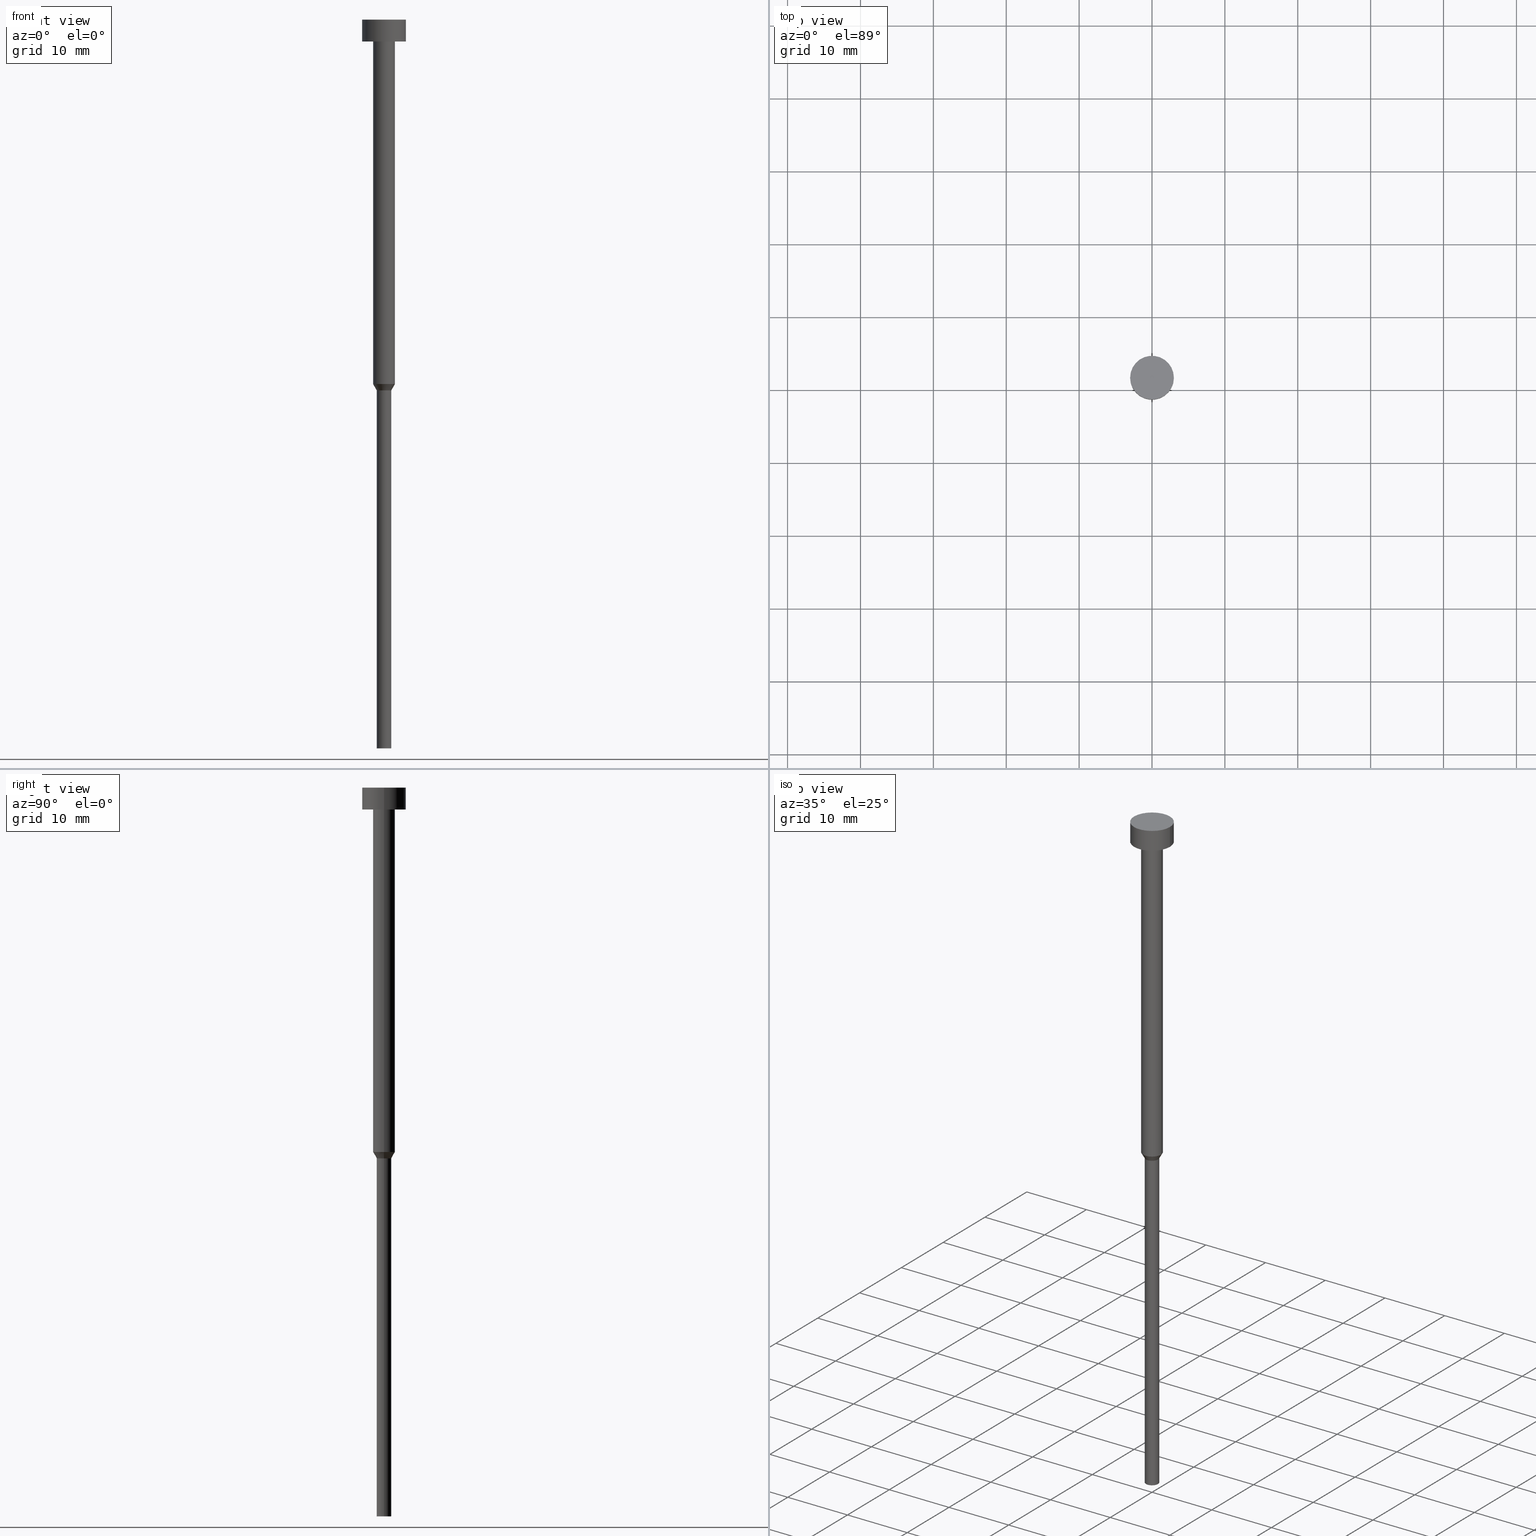
[diagram: canonical four-view strip — front | top / right | iso, engineering-drawing reading convention]
A machine part, canonical four-view strip (front | top / right | iso — engineering-drawing reading convention). The complete STEP part file that produces these views, byte-faithful:
ISO-10303-21;
HEADER;
FILE_DESCRIPTION (( 'STEP AP203' ),
    '1' );
FILE_NAME ('8525.STEP',
    '2023-02-13T10:56:04',
    ( '' ),
    ( '' ),
    'SwSTEP 2.0',
    'SolidWorks 2019',
    '' );
FILE_SCHEMA (( 'CONFIG_CONTROL_DESIGN' ));
ENDSEC;

DATA;
#1 = FACE_OUTER_BOUND ( 'NONE', #127, .T. ) ;
#2 = APPROVAL_ROLE ( '' ) ;
#3 =( LENGTH_UNIT ( ) NAMED_UNIT ( * ) SI_UNIT ( .MILLI., .METRE. ) );
#4 = DIRECTION ( 'NONE',  ( -0.000000000000000000, -0.000000000000000000, 1.000000000000000000 ) ) ;
#5 = CC_DESIGN_DATE_AND_TIME_ASSIGNMENT ( #317, #15, ( #118 ) ) ;
#6 = APPLICATION_CONTEXT ( 'configuration controlled 3d designs of mechanical parts and assemblies' ) ;
#7 = ORIENTED_EDGE ( 'NONE', *, *, #262, .T. ) ;
#8 = CC_DESIGN_DATE_AND_TIME_ASSIGNMENT ( #121, #266, ( #33 ) ) ;
#9 = APPLICATION_PROTOCOL_DEFINITION ( 'international standard', 'config_control_design', 1994, #184 ) ;
#10 = CIRCLE ( 'NONE', #214, 1.000000000000000000 ) ;
#11 = ORIENTED_EDGE ( 'NONE', *, *, #56, .T. ) ;
#12 = AXIS2_PLACEMENT_3D ( 'NONE', #139, #279, #30 ) ;
#13 = PERSON_AND_ORGANIZATION_ROLE ( 'design_supplier' ) ;
#14 = CARTESIAN_POINT ( 'NONE',  ( 3.000000000000000000, 0.000000000000000000, -3.673940397442059868E-16 ) ) ;
#15 = DATE_TIME_ROLE ( 'creation_date' ) ;
#16 = DIRECTION ( 'NONE',  ( -0.5000000000000012212, 6.123233995736782060E-17, 0.8660254037844380415 ) ) ;
#17 = SECURITY_CLASSIFICATION_LEVEL ( 'unclassified' ) ;
#18 = PLANE ( 'NONE',  #219 ) ;
#19 = ORIENTED_EDGE ( 'NONE', *, *, #318, .T. ) ;
#20 = ORIENTED_EDGE ( 'NONE', *, *, #88, .T. ) ;
#21 = FACE_OUTER_BOUND ( 'NONE', #156, .T. ) ;
#22 = LOCAL_TIME ( 11, 56, 4.000000000000000000, #119 ) ;
#23 = DIRECTION ( 'NONE',  ( 0.5000000000000012212, 0.000000000000000000, 0.8660254037844380415 ) ) ;
#24 = CARTESIAN_POINT ( 'NONE',  ( -1.000000000000000000, 1.224646799147353207E-16, 0.000000000000000000 ) ) ;
#25 = ORIENTED_EDGE ( 'NONE', *, *, #190, .T. ) ;
#26 = FACE_OUTER_BOUND ( 'NONE', #261, .T. ) ;
#27 = VERTEX_POINT ( 'NONE', #14 ) ;
#28 = ORGANIZATION ( 'NEUR�EN�', 'NEUR�EN�', '' ) ;
#29 = PLANE ( 'NONE',  #107 ) ;
#30 = DIRECTION ( 'NONE',  ( 1.000000000000000000, 0.000000000000000000, 0.000000000000000000 ) ) ;
#31 = DIRECTION ( 'NONE',  ( 1.000000000000000000, 0.000000000000000000, 0.000000000000000000 ) ) ;
#32 = LINE ( 'NONE', #336, #332 ) ;
#33 = SECURITY_CLASSIFICATION ( '', '', #17 ) ;
#34 = VERTEX_POINT ( 'NONE', #176 ) ;
#35 = PERSON_AND_ORGANIZATION ( #108, #28 ) ;
#36 = AXIS2_PLACEMENT_3D ( 'NONE', #319, #98, #93 ) ;
#37 = VERTEX_POINT ( 'NONE', #151 ) ;
#38 = CARTESIAN_POINT ( 'NONE',  ( 0.000000000000000000, 0.000000000000000000, -100.0000000000000000 ) ) ;
#39 = APPROVAL_ROLE ( '' ) ;
#40 = CARTESIAN_POINT ( 'NONE',  ( -1.500000000000000000, 1.836970198721029934E-16, -50.00000000000000000 ) ) ;
#41 = CALENDAR_DATE ( 2023, 13, 2 ) ;
#42 = CYLINDRICAL_SURFACE ( 'NONE', #206, 1.000000000000000000 ) ;
#43 = VECTOR ( 'NONE', #16, 999.9999999999998863 ) ;
#44 = PERSON_AND_ORGANIZATION ( #108, #28 ) ;
#45 = APPROVAL ( #115, 'NEUR�EN�' ) ;
#46 = CARTESIAN_POINT ( 'NONE',  ( -1.000000000000000000, 1.224646799147353207E-16, -50.86602540378444104 ) ) ;
#47 = ADVANCED_FACE ( 'NONE', ( #178 ), #145, .T. ) ;
#48 = CIRCLE ( 'NONE', #191, 3.000000000000000000 ) ;
#49 = DIRECTION ( 'NONE',  ( -0.000000000000000000, -0.000000000000000000, 1.000000000000000000 ) ) ;
#50 = CARTESIAN_POINT ( 'NONE',  ( 0.000000000000000000, 0.000000000000000000, -50.00000000000000000 ) ) ;
#51 = DIRECTION ( 'NONE',  ( 1.000000000000000000, 0.000000000000000000, 0.000000000000000000 ) ) ;
#52 = DIRECTION ( 'NONE',  ( 1.000000000000000000, 0.000000000000000000, 0.000000000000000000 ) ) ;
#53 = EDGE_LOOP ( 'NONE', ( #259, #146, #320, #281 ) ) ;
#54 = DIRECTION ( 'NONE',  ( -0.000000000000000000, -0.000000000000000000, 1.000000000000000000 ) ) ;
#55 = LINE ( 'NONE', #300, #210 ) ;
#56 = EDGE_CURVE ( 'NONE', #69, #192, #241, .T. ) ;
#57 = LOCAL_TIME ( 11, 56, 4.000000000000000000, #263 ) ;
#58 = PERSON_AND_ORGANIZATION ( #108, #28 ) ;
#59 = DESIGN_CONTEXT ( 'detailed design', #184, 'design' ) ;
#60 = AXIS2_PLACEMENT_3D ( 'NONE', #50, #350, #81 ) ;
#61 = ADVANCED_FACE ( 'NONE', ( #270 ), #122, .T. ) ;
#62 = APPLICATION_PROTOCOL_DEFINITION ( 'international standard', 'config_control_design', 1994, #6 ) ;
#63 = PRODUCT_DEFINITION_FORMATION_WITH_SPECIFIED_SOURCE ( 'LIBOVOLN�', '', #341, .NOT_KNOWN. ) ;
#64 = AXIS2_PLACEMENT_3D ( 'NONE', #276, #293, #328 ) ;
#65 = ORIENTED_EDGE ( 'NONE', *, *, #203, .T. ) ;
#66 = APPROVAL_DATE_TIME ( #179, #45 ) ;
#67 = EDGE_LOOP ( 'NONE', ( #212, #11, #258, #335 ) ) ;
#68 = DIRECTION ( 'NONE',  ( -0.000000000000000000, -0.000000000000000000, 1.000000000000000000 ) ) ;
#69 = VERTEX_POINT ( 'NONE', #46 ) ;
#70 = AXIS2_PLACEMENT_3D ( 'NONE', #126, #49, #240 ) ;
#71 = EDGE_CURVE ( 'NONE', #27, #343, #82, .T. ) ;
#72 = COORDINATED_UNIVERSAL_TIME_OFFSET ( 1, 0, .AHEAD. ) ;
#73 = ORIENTED_EDGE ( 'NONE', *, *, #251, .T. ) ;
#74 = CC_DESIGN_APPROVAL ( #45, ( #33 ) ) ;
#75 = DIRECTION ( 'NONE',  ( 1.000000000000000000, 0.000000000000000000, 0.000000000000000000 ) ) ;
#76 = DIRECTION ( 'NONE',  ( -0.000000000000000000, -0.000000000000000000, 1.000000000000000000 ) ) ;
#77 = CARTESIAN_POINT ( 'NONE',  ( 0.000000000000000000, 0.000000000000000000, -50.86602540378444104 ) ) ;
#78 = AXIS2_PLACEMENT_3D ( 'NONE', #168, #114, #31 ) ;
#79 = DIRECTION ( 'NONE',  ( -0.000000000000000000, -0.000000000000000000, 1.000000000000000000 ) ) ;
#80 = CC_DESIGN_PERSON_AND_ORGANIZATION_ASSIGNMENT ( #123, #288, ( #33 ) ) ;
#81 = DIRECTION ( 'NONE',  ( 1.000000000000000000, 0.000000000000000000, 0.000000000000000000 ) ) ;
#82 = CIRCLE ( 'NONE', #70, 3.000000000000000000 ) ;
#83 = DIRECTION ( 'NONE',  ( 1.000000000000000000, 0.000000000000000000, 0.000000000000000000 ) ) ;
#84 = ADVANCED_FACE ( 'NONE', ( #237 ), #18, .T. ) ;
#85 = LOCAL_TIME ( 11, 56, 4.000000000000000000, #72 ) ;
#86 = CARTESIAN_POINT ( 'NONE',  ( 0.000000000000000000, 0.000000000000000000, -3.000000000000000888 ) ) ;
#87 = ADVANCED_BREP_SHAPE_REPRESENTATION ( '8525', ( #131, #78 ), #201 ) ;
#88 = EDGE_CURVE ( 'NONE', #312, #264, #226, .T. ) ;
#89 = CARTESIAN_POINT ( 'NONE',  ( 0.000000000000000000, 0.000000000000000000, -3.000000000000000888 ) ) ;
#90 = DIRECTION ( 'NONE',  ( -0.000000000000000000, -0.000000000000000000, 1.000000000000000000 ) ) ;
#91 = APPROVAL_PERSON_ORGANIZATION ( #35, #325, #2 ) ;
#92 = ORIENTED_EDGE ( 'NONE', *, *, #88, .F. ) ;
#93 = DIRECTION ( 'NONE',  ( 1.000000000000000000, 0.000000000000000000, 0.000000000000000000 ) ) ;
#94 = PERSON_AND_ORGANIZATION ( #108, #28 ) ;
#95 = AXIS2_PLACEMENT_3D ( 'NONE', #38, #205, #238 ) ;
#96 = VERTEX_POINT ( 'NONE', #309 ) ;
#97 = FACE_OUTER_BOUND ( 'NONE', #117, .T. ) ;
#98 = DIRECTION ( 'NONE',  ( -0.000000000000000000, -0.000000000000000000, 1.000000000000000000 ) ) ;
#99 = ADVANCED_FACE ( 'NONE', ( #97 ), #42, .T. ) ;
#100 = DIRECTION ( 'NONE',  ( 1.000000000000000000, 0.000000000000000000, 0.000000000000000000 ) ) ;
#101 = CARTESIAN_POINT ( 'NONE',  ( 0.000000000000000000, 0.000000000000000000, -50.86602540378444104 ) ) ;
#102 = CARTESIAN_POINT ( 'NONE',  ( 0.000000000000000000, 0.000000000000000000, -3.673940397442059868E-16 ) ) ;
#103 = ADVANCED_FACE ( 'NONE', ( #217 ), #188, .T. ) ;
#104 = DIRECTION ( 'NONE',  ( 1.000000000000000000, 0.000000000000000000, 0.000000000000000000 ) ) ;
#105 = AXIS2_PLACEMENT_3D ( 'NONE', #194, #187, #273 ) ;
#106 = DIRECTION ( 'NONE',  ( -0.000000000000000000, -0.000000000000000000, 1.000000000000000000 ) ) ;
#107 = AXIS2_PLACEMENT_3D ( 'NONE', #243, #218, #298 ) ;
#108 = PERSON ( 'NEUR�EN�', 'NEUR�EN�', 'NEUR�EN�', ('NEUR�EN�'), ('NEUR�EN�'), ('NEUR�EN�') ) ;
#109 = LINE ( 'NONE', #24, #199 ) ;
#110 = COORDINATED_UNIVERSAL_TIME_OFFSET ( 1, 0, .AHEAD. ) ;
#111 = PRODUCT_RELATED_PRODUCT_CATEGORY ( 'detail', '', ( #341 ) ) ;
#112 = DIRECTION ( 'NONE',  ( -1.000000000000000000, 0.000000000000000000, -0.000000000000000000 ) ) ;
#113 = LINE ( 'NONE', #305, #291 ) ;
#114 = DIRECTION ( 'NONE',  ( 0.000000000000000000, 0.000000000000000000, 1.000000000000000000 ) ) ;
#115 = APPROVAL_STATUS ( 'not_yet_approved' ) ;
#116 = CIRCLE ( 'NONE', #222, 1.500000000000000000 ) ;
#117 = EDGE_LOOP ( 'NONE', ( #229, #20, #292, #133 ) ) ;
#118 = PRODUCT_DEFINITION ( 'NEZN�M�', '', #63, #59 ) ;
#119 = COORDINATED_UNIVERSAL_TIME_OFFSET ( 1, 0, .AHEAD. ) ;
#120 = ORIENTED_EDGE ( 'NONE', *, *, #329, .T. ) ;
#121 = DATE_AND_TIME ( #41, #85 ) ;
#122 = CYLINDRICAL_SURFACE ( 'NONE', #36, 3.000000000000000000 ) ;
#123 = PERSON_AND_ORGANIZATION ( #108, #28 ) ;
#124 = CARTESIAN_POINT ( 'NONE',  ( 0.000000000000000000, 0.000000000000000000, 0.000000000000000000 ) ) ;
#125 = CIRCLE ( 'NONE', #141, 1.500000000000000000 ) ;
#126 = CARTESIAN_POINT ( 'NONE',  ( 0.000000000000000000, 0.000000000000000000, -3.673940397442059868E-16 ) ) ;
#127 = EDGE_LOOP ( 'NONE', ( #330, #208 ) ) ;
#128 = LINE ( 'NONE', #157, #221 ) ;
#129 = VECTOR ( 'NONE', #308, 1000.000000000000000 ) ;
#130 = CARTESIAN_POINT ( 'NONE',  ( -1.500000000000000000, 1.836970198721029934E-16, -50.00000000000000000 ) ) ;
#131 = MANIFOLD_SOLID_BREP ( 'Rotovat1', #301 ) ;
#132 = CARTESIAN_POINT ( 'NONE',  ( 0.000000000000000000, 0.000000000000000000, -100.0000000000000000 ) ) ;
#133 = ORIENTED_EDGE ( 'NONE', *, *, #150, .F. ) ;
#134 = CYLINDRICAL_SURFACE ( 'NONE', #242, 3.000000000000000000 ) ;
#135 = AXIS2_PLACEMENT_3D ( 'NONE', #354, #54, #189 ) ;
#136 = ORIENTED_EDGE ( 'NONE', *, *, #71, .F. ) ;
#137 = DIRECTION ( 'NONE',  ( -0.000000000000000000, -0.000000000000000000, 1.000000000000000000 ) ) ;
#138 = DIRECTION ( 'NONE',  ( -0.000000000000000000, -0.000000000000000000, 1.000000000000000000 ) ) ;
#139 = CARTESIAN_POINT ( 'NONE',  ( 0.000000000000000000, 0.000000000000000000, -3.000000000000000888 ) ) ;
#140 = ADVANCED_FACE ( 'NONE', ( #275 ), #244, .T. ) ;
#141 = AXIS2_PLACEMENT_3D ( 'NONE', #326, #296, #52 ) ;
#142 = FACE_OUTER_BOUND ( 'NONE', #172, .T. ) ;
#143 = ORIENTED_EDGE ( 'NONE', *, *, #177, .F. ) ;
#144 = PERSON_AND_ORGANIZATION ( #108, #28 ) ;
#145 = CONICAL_SURFACE ( 'NONE', #197, 1.500000000000000000, 0.5235987755983002589 ) ;
#146 = ORIENTED_EDGE ( 'NONE', *, *, #177, .T. ) ;
#147 = PRODUCT_DEFINITION_SHAPE ( 'NONE', 'NONE',  #118 ) ;
#148 = DATE_AND_TIME ( #339, #22 ) ;
#149 = ORIENTED_EDGE ( 'NONE', *, *, #234, .T. ) ;
#150 = EDGE_CURVE ( 'NONE', #69, #255, #265, .T. ) ;
#151 = CARTESIAN_POINT ( 'NONE',  ( -3.000000000000000000, 3.673940397442059868E-16, -3.000000000000000888 ) ) ;
#152 = DIRECTION ( 'NONE',  ( -0.000000000000000000, -0.000000000000000000, 1.000000000000000000 ) ) ;
#153 = AXIS2_PLACEMENT_3D ( 'NONE', #89, #90, #83 ) ;
#154 = ORIENTED_EDGE ( 'NONE', *, *, #56, .F. ) ;
#155 = CC_DESIGN_PERSON_AND_ORGANIZATION_ASSIGNMENT ( #44, #13, ( #63 ) ) ;
#156 = EDGE_LOOP ( 'NONE', ( #348, #120, #183, #213 ) ) ;
#157 = CARTESIAN_POINT ( 'NONE',  ( -1.500000000000000000, 1.836970198721029934E-16, 0.000000000000000000 ) ) ;
#158 = DIRECTION ( 'NONE',  ( 1.000000000000000000, 0.000000000000000000, 0.000000000000000000 ) ) ;
#159 = DIRECTION ( 'NONE',  ( 1.000000000000000000, 0.000000000000000000, 0.000000000000000000 ) ) ;
#160 = ORIENTED_EDGE ( 'NONE', *, *, #235, .T. ) ;
#161 = DIRECTION ( 'NONE',  ( -0.000000000000000000, -0.000000000000000000, 1.000000000000000000 ) ) ;
#162 = DIRECTION ( 'NONE',  ( -0.000000000000000000, -0.000000000000000000, 1.000000000000000000 ) ) ;
#163 = AXIS2_PLACEMENT_3D ( 'NONE', #321, #79, #51 ) ;
#164 = AXIS2_PLACEMENT_3D ( 'NONE', #86, #171, #165 ) ;
#165 = DIRECTION ( 'NONE',  ( 1.000000000000000000, 0.000000000000000000, 0.000000000000000000 ) ) ;
#166 = CARTESIAN_POINT ( 'NONE',  ( 0.000000000000000000, -3.000000000000000000, -3.000000000000000888 ) ) ;
#167 = APPROVAL ( #181, 'NEUR�EN�' ) ;
#168 = CARTESIAN_POINT ( 'NONE',  ( 0.000000000000000000, 0.000000000000000000, 0.000000000000000000 ) ) ;
#169 = APPROVAL_PERSON_ORGANIZATION ( #174, #45, #39 ) ;
#170 = CARTESIAN_POINT ( 'NONE',  ( -1.000000000000000000, 1.224646799147353207E-16, -100.0000000000000000 ) ) ;
#171 = DIRECTION ( 'NONE',  ( -0.000000000000000000, -0.000000000000000000, 1.000000000000000000 ) ) ;
#172 = EDGE_LOOP ( 'NONE', ( #233, #180 ) ) ;
#173 = ORIENTED_EDGE ( 'NONE', *, *, #323, .F. ) ;
#174 = PERSON_AND_ORGANIZATION ( #108, #28 ) ;
#175 = CIRCLE ( 'NONE', #153, 3.000000000000000000 ) ;
#176 = CARTESIAN_POINT ( 'NONE',  ( -1.500000000000000000, 1.836970198721029934E-16, -3.000000000000000888 ) ) ;
#177 = EDGE_CURVE ( 'NONE', #192, #290, #277, .T. ) ;
#178 = FACE_OUTER_BOUND ( 'NONE', #67, .T. ) ;
#179 = DATE_AND_TIME ( #342, #253 ) ;
#180 = ORIENTED_EDGE ( 'NONE', *, *, #329, .F. ) ;
#181 = APPROVAL_STATUS ( 'not_yet_approved' ) ;
#182 = CC_DESIGN_APPROVAL ( #167, ( #63 ) ) ;
#183 = ORIENTED_EDGE ( 'NONE', *, *, #323, .T. ) ;
#184 = APPLICATION_CONTEXT ( 'configuration controlled 3d designs of mechanical parts and assemblies' ) ;
#185 = DIRECTION ( 'NONE',  ( -0.000000000000000000, -0.000000000000000000, 1.000000000000000000 ) ) ;
#186 = EDGE_CURVE ( 'NONE', #255, #69, #10, .T. ) ;
#187 = DIRECTION ( 'NONE',  ( -0.000000000000000000, -0.000000000000000000, 1.000000000000000000 ) ) ;
#188 = CONICAL_SURFACE ( 'NONE', #60, 1.500000000000000000, 0.5235987755983002589 ) ;
#189 = DIRECTION ( 'NONE',  ( 1.000000000000000000, 0.000000000000000000, 0.000000000000000000 ) ) ;
#190 = EDGE_CURVE ( 'NONE', #255, #290, #353, .T. ) ;
#191 = AXIS2_PLACEMENT_3D ( 'NONE', #102, #4, #333 ) ;
#192 = VERTEX_POINT ( 'NONE', #130 ) ;
#193 = CC_DESIGN_PERSON_AND_ORGANIZATION_ASSIGNMENT ( #311, #344, ( #63 ) ) ;
#194 = CARTESIAN_POINT ( 'NONE',  ( 0.000000000000000000, 0.000000000000000000, 0.000000000000000000 ) ) ;
#195 = EDGE_LOOP ( 'NONE', ( #154, #223, #25, #143 ) ) ;
#196 = CARTESIAN_POINT ( 'NONE',  ( 0.000000000000000000, 0.000000000000000000, 0.000000000000000000 ) ) ;
#197 = AXIS2_PLACEMENT_3D ( 'NONE', #287, #68, #267 ) ;
#198 = DATE_AND_TIME ( #225, #260 ) ;
#199 = VECTOR ( 'NONE', #161, 1000.000000000000000 ) ;
#200 = CARTESIAN_POINT ( 'NONE',  ( 3.000000000000000000, 0.000000000000000000, 0.000000000000000000 ) ) ;
#201 =( GEOMETRIC_REPRESENTATION_CONTEXT ( 3 ) GLOBAL_UNCERTAINTY_ASSIGNED_CONTEXT ( ( #306 ) ) GLOBAL_UNIT_ASSIGNED_CONTEXT ( ( #3, #227, #202 ) ) REPRESENTATION_CONTEXT ( 'NONE', 'WORKASPACE' ) );
#202 =( NAMED_UNIT ( * ) SI_UNIT ( $, .STERADIAN. ) SOLID_ANGLE_UNIT ( ) );
#203 = EDGE_CURVE ( 'NONE', #34, #247, #116, .T. ) ;
#204 = EDGE_LOOP ( 'NONE', ( #19, #7, #136, #173 ) ) ;
#205 = DIRECTION ( 'NONE',  ( -0.000000000000000000, -0.000000000000000000, 1.000000000000000000 ) ) ;
#206 = AXIS2_PLACEMENT_3D ( 'NONE', #124, #152, #100 ) ;
#207 = APPROVAL_ROLE ( '' ) ;
#208 = ORIENTED_EDGE ( 'NONE', *, *, #284, .T. ) ;
#209 = ADVANCED_FACE ( 'NONE', ( #21 ), #134, .T. ) ;
#210 = VECTOR ( 'NONE', #137, 1000.000000000000000 ) ;
#211 = ORIENTED_EDGE ( 'NONE', *, *, #314, .F. ) ;
#212 = ORIENTED_EDGE ( 'NONE', *, *, #186, .T. ) ;
#213 = ORIENTED_EDGE ( 'NONE', *, *, #284, .F. ) ;
#214 = AXIS2_PLACEMENT_3D ( 'NONE', #101, #294, #158 ) ;
#215 = ADVANCED_FACE ( 'NONE', ( #26 ), #248, .T. ) ;
#216 = CARTESIAN_POINT ( 'NONE',  ( 1.000000000000000000, 0.000000000000000000, -100.0000000000000000 ) ) ;
#217 = FACE_OUTER_BOUND ( 'NONE', #195, .T. ) ;
#218 = DIRECTION ( 'NONE',  ( 0.000000000000000000, -0.000000000000000000, 1.000000000000000000 ) ) ;
#219 = AXIS2_PLACEMENT_3D ( 'NONE', #345, #349, #289 ) ;
#220 = CARTESIAN_POINT ( 'NONE',  ( 1.000000000000000000, 0.000000000000000000, -50.86602540378444104 ) ) ;
#221 = VECTOR ( 'NONE', #106, 1000.000000000000000 ) ;
#222 = AXIS2_PLACEMENT_3D ( 'NONE', #324, #185, #159 ) ;
#223 = ORIENTED_EDGE ( 'NONE', *, *, #150, .T. ) ;
#224 = CYLINDRICAL_SURFACE ( 'NONE', #64, 1.500000000000000000 ) ;
#225 = CALENDAR_DATE ( 2023, 13, 2 ) ;
#226 = CIRCLE ( 'NONE', #95, 1.000000000000000000 ) ;
#227 =( NAMED_UNIT ( * ) PLANE_ANGLE_UNIT ( ) SI_UNIT ( $, .RADIAN. ) );
#228 = ADVANCED_FACE ( 'NONE', ( #1 ), #29, .T. ) ;
#229 = ORIENTED_EDGE ( 'NONE', *, *, #235, .F. ) ;
#230 = AXIS2_PLACEMENT_3D ( 'NONE', #77, #274, #352 ) ;
#231 = VECTOR ( 'NONE', #23, 999.9999999999998863 ) ;
#232 = SHAPE_DEFINITION_REPRESENTATION ( #147, #87 ) ;
#233 = ORIENTED_EDGE ( 'NONE', *, *, #318, .F. ) ;
#234 = EDGE_CURVE ( 'NONE', #290, #192, #125, .T. ) ;
#235 = EDGE_CURVE ( 'NONE', #312, #69, #109, .T. ) ;
#236 = CALENDAR_DATE ( 2023, 13, 2 ) ;
#237 = FACE_OUTER_BOUND ( 'NONE', #283, .T. ) ;
#238 = DIRECTION ( 'NONE',  ( 1.000000000000000000, 0.000000000000000000, 0.000000000000000000 ) ) ;
#239 = PERSON_AND_ORGANIZATION_ROLE ( 'creator' ) ;
#240 = DIRECTION ( 'NONE',  ( 1.000000000000000000, 0.000000000000000000, 0.000000000000000000 ) ) ;
#241 = LINE ( 'NONE', #40, #43 ) ;
#242 = AXIS2_PLACEMENT_3D ( 'NONE', #196, #76, #104 ) ;
#243 = CARTESIAN_POINT ( 'NONE',  ( 0.000000000000000000, 0.000000000000000000, -1.836970198721029934E-16 ) ) ;
#244 = CYLINDRICAL_SURFACE ( 'NONE', #105, 1.500000000000000000 ) ;
#245 = EDGE_CURVE ( 'NONE', #264, #312, #346, .T. ) ;
#246 = CARTESIAN_POINT ( 'NONE',  ( 1.500000000000000000, 0.000000000000000000, -3.000000000000000888 ) ) ;
#247 = VERTEX_POINT ( 'NONE', #246 ) ;
#248 = CYLINDRICAL_SURFACE ( 'NONE', #135, 1.000000000000000000 ) ;
#249 = CIRCLE ( 'NONE', #12, 1.500000000000000000 ) ;
#250 = APPROVAL_STATUS ( 'not_yet_approved' ) ;
#251 = EDGE_CURVE ( 'NONE', #192, #34, #128, .T. ) ;
#252 = LINE ( 'NONE', #200, #129 ) ;
#253 = LOCAL_TIME ( 11, 56, 4.000000000000000000, #347 ) ;
#254 = PLANE ( 'NONE',  #307 ) ;
#255 = VERTEX_POINT ( 'NONE', #220 ) ;
#256 = ADVANCED_FACE ( 'NONE', ( #327 ), #224, .T. ) ;
#257 = PERSON_AND_ORGANIZATION_ROLE ( 'design_owner' ) ;
#258 = ORIENTED_EDGE ( 'NONE', *, *, #234, .F. ) ;
#259 = ORIENTED_EDGE ( 'NONE', *, *, #251, .F. ) ;
#260 = LOCAL_TIME ( 11, 56, 4.000000000000000000, #110 ) ;
#261 = EDGE_LOOP ( 'NONE', ( #285, #160, #316, #355 ) ) ;
#262 = EDGE_CURVE ( 'NONE', #37, #343, #55, .T. ) ;
#263 = COORDINATED_UNIVERSAL_TIME_OFFSET ( 1, 0, .AHEAD. ) ;
#264 = VERTEX_POINT ( 'NONE', #216 ) ;
#265 = CIRCLE ( 'NONE', #230, 1.000000000000000000 ) ;
#266 = DATE_TIME_ROLE ( 'classification_date' ) ;
#267 = DIRECTION ( 'NONE',  ( 1.000000000000000000, 0.000000000000000000, 0.000000000000000000 ) ) ;
#268 = APPROVAL_PERSON_ORGANIZATION ( #94, #167, #207 ) ;
#269 = EDGE_LOOP ( 'NONE', ( #340, #65 ) ) ;
#270 = FACE_OUTER_BOUND ( 'NONE', #204, .T. ) ;
#271 = CARTESIAN_POINT ( 'NONE',  ( 1.500000000000000000, 0.000000000000000000, -50.00000000000000000 ) ) ;
#272 = AXIS2_PLACEMENT_3D ( 'NONE', #132, #162, #75 ) ;
#273 = DIRECTION ( 'NONE',  ( 1.000000000000000000, 0.000000000000000000, 0.000000000000000000 ) ) ;
#274 = DIRECTION ( 'NONE',  ( -0.000000000000000000, -0.000000000000000000, 1.000000000000000000 ) ) ;
#275 = FACE_OUTER_BOUND ( 'NONE', #53, .T. ) ;
#276 = CARTESIAN_POINT ( 'NONE',  ( 0.000000000000000000, 0.000000000000000000, 0.000000000000000000 ) ) ;
#277 = CIRCLE ( 'NONE', #163, 1.500000000000000000 ) ;
#278 = FACE_BOUND ( 'NONE', #269, .T. ) ;
#279 = DIRECTION ( 'NONE',  ( -0.000000000000000000, -0.000000000000000000, 1.000000000000000000 ) ) ;
#280 = DIRECTION ( 'NONE',  ( -0.000000000000000000, -0.000000000000000000, 1.000000000000000000 ) ) ;
#281 = ORIENTED_EDGE ( 'NONE', *, *, #203, .F. ) ;
#282 = MECHANICAL_CONTEXT ( 'NONE', #6, 'mechanical' ) ;
#283 = EDGE_LOOP ( 'NONE', ( #299, #92 ) ) ;
#284 = EDGE_CURVE ( 'NONE', #343, #27, #48, .T. ) ;
#285 = ORIENTED_EDGE ( 'NONE', *, *, #245, .T. ) ;
#286 = CIRCLE ( 'NONE', #164, 3.000000000000000000 ) ;
#287 = CARTESIAN_POINT ( 'NONE',  ( 0.000000000000000000, 0.000000000000000000, -50.00000000000000000 ) ) ;
#288 = PERSON_AND_ORGANIZATION_ROLE ( 'classification_officer' ) ;
#289 = DIRECTION ( 'NONE',  ( -1.000000000000000000, 0.000000000000000000, -0.000000000000000000 ) ) ;
#290 = VERTEX_POINT ( 'NONE', #331 ) ;
#291 = VECTOR ( 'NONE', #138, 1000.000000000000000 ) ;
#292 = ORIENTED_EDGE ( 'NONE', *, *, #304, .T. ) ;
#293 = DIRECTION ( 'NONE',  ( -0.000000000000000000, -0.000000000000000000, 1.000000000000000000 ) ) ;
#294 = DIRECTION ( 'NONE',  ( -0.000000000000000000, -0.000000000000000000, 1.000000000000000000 ) ) ;
#295 = CC_DESIGN_PERSON_AND_ORGANIZATION_ASSIGNMENT ( #144, #257, ( #341 ) ) ;
#296 = DIRECTION ( 'NONE',  ( -0.000000000000000000, -0.000000000000000000, 1.000000000000000000 ) ) ;
#297 = EDGE_LOOP ( 'NONE', ( #149, #73, #211, #337 ) ) ;
#298 = DIRECTION ( 'NONE',  ( 1.000000000000000000, 0.000000000000000000, 0.000000000000000000 ) ) ;
#299 = ORIENTED_EDGE ( 'NONE', *, *, #245, .F. ) ;
#300 = CARTESIAN_POINT ( 'NONE',  ( -3.000000000000000000, 3.673940397442059868E-16, 0.000000000000000000 ) ) ;
#301 = CLOSED_SHELL ( 'NONE', ( #61, #256, #47, #215, #84, #99, #103, #140, #322, #209, #228 ) ) ;
#302 = APPROVAL_DATE_TIME ( #198, #325 ) ;
#303 = DIRECTION ( 'NONE',  ( 0.000000000000000000, 0.000000000000000000, -1.000000000000000000 ) ) ;
#304 = EDGE_CURVE ( 'NONE', #264, #255, #113, .T. ) ;
#305 = CARTESIAN_POINT ( 'NONE',  ( 1.000000000000000000, 0.000000000000000000, 0.000000000000000000 ) ) ;
#306 = UNCERTAINTY_MEASURE_WITH_UNIT (LENGTH_MEASURE( 1.000000000000000082E-05 ), #3, 'distance_accuracy_value', 'NONE');
#307 = AXIS2_PLACEMENT_3D ( 'NONE', #166, #303, #112 ) ;
#308 = DIRECTION ( 'NONE',  ( -0.000000000000000000, -0.000000000000000000, 1.000000000000000000 ) ) ;
#309 = CARTESIAN_POINT ( 'NONE',  ( 3.000000000000000000, 0.000000000000000000, -3.000000000000000888 ) ) ;
#310 = EDGE_CURVE ( 'NONE', #290, #247, #32, .T. ) ;
#311 = PERSON_AND_ORGANIZATION ( #108, #28 ) ;
#312 = VERTEX_POINT ( 'NONE', #170 ) ;
#313 = CC_DESIGN_SECURITY_CLASSIFICATION ( #33, ( #63 ) ) ;
#314 = EDGE_CURVE ( 'NONE', #247, #34, #249, .T. ) ;
#315 = APPROVAL_DATE_TIME ( #148, #167 ) ;
#316 = ORIENTED_EDGE ( 'NONE', *, *, #186, .F. ) ;
#317 = DATE_AND_TIME ( #236, #57 ) ;
#318 = EDGE_CURVE ( 'NONE', #96, #37, #286, .T. ) ;
#319 = CARTESIAN_POINT ( 'NONE',  ( 0.000000000000000000, 0.000000000000000000, 0.000000000000000000 ) ) ;
#320 = ORIENTED_EDGE ( 'NONE', *, *, #310, .T. ) ;
#321 = CARTESIAN_POINT ( 'NONE',  ( 0.000000000000000000, 0.000000000000000000, -50.00000000000000000 ) ) ;
#322 = ADVANCED_FACE ( 'NONE', ( #278, #142 ), #254, .T. ) ;
#323 = EDGE_CURVE ( 'NONE', #96, #27, #252, .T. ) ;
#324 = CARTESIAN_POINT ( 'NONE',  ( 0.000000000000000000, 0.000000000000000000, -3.000000000000000888 ) ) ;
#325 = APPROVAL ( #250, 'NEUR�EN�' ) ;
#326 = CARTESIAN_POINT ( 'NONE',  ( 0.000000000000000000, 0.000000000000000000, -50.00000000000000000 ) ) ;
#327 = FACE_OUTER_BOUND ( 'NONE', #297, .T. ) ;
#328 = DIRECTION ( 'NONE',  ( 1.000000000000000000, 0.000000000000000000, 0.000000000000000000 ) ) ;
#329 = EDGE_CURVE ( 'NONE', #37, #96, #175, .T. ) ;
#330 = ORIENTED_EDGE ( 'NONE', *, *, #71, .T. ) ;
#331 = CARTESIAN_POINT ( 'NONE',  ( 1.500000000000000000, 0.000000000000000000, -50.00000000000000000 ) ) ;
#332 = VECTOR ( 'NONE', #280, 1000.000000000000000 ) ;
#333 = DIRECTION ( 'NONE',  ( 1.000000000000000000, 0.000000000000000000, 0.000000000000000000 ) ) ;
#334 = CARTESIAN_POINT ( 'NONE',  ( -3.000000000000000000, 3.673940397442059868E-16, -3.673940397442059868E-16 ) ) ;
#335 = ORIENTED_EDGE ( 'NONE', *, *, #190, .F. ) ;
#336 = CARTESIAN_POINT ( 'NONE',  ( 1.500000000000000000, 0.000000000000000000, 0.000000000000000000 ) ) ;
#337 = ORIENTED_EDGE ( 'NONE', *, *, #310, .F. ) ;
#338 = CC_DESIGN_APPROVAL ( #325, ( #118 ) ) ;
#339 = CALENDAR_DATE ( 2023, 13, 2 ) ;
#340 = ORIENTED_EDGE ( 'NONE', *, *, #314, .T. ) ;
#341 = PRODUCT ( '8525', '8525', '', ( #282 ) ) ;
#342 = CALENDAR_DATE ( 2023, 13, 2 ) ;
#343 = VERTEX_POINT ( 'NONE', #334 ) ;
#344 = PERSON_AND_ORGANIZATION_ROLE ( 'creator' ) ;
#345 = CARTESIAN_POINT ( 'NONE',  ( 0.000000000000000000, 0.000000000000000000, -100.0000000000000000 ) ) ;
#346 = CIRCLE ( 'NONE', #272, 1.000000000000000000 ) ;
#347 = COORDINATED_UNIVERSAL_TIME_OFFSET ( 1, 0, .AHEAD. ) ;
#348 = ORIENTED_EDGE ( 'NONE', *, *, #262, .F. ) ;
#349 = DIRECTION ( 'NONE',  ( 0.000000000000000000, 0.000000000000000000, -1.000000000000000000 ) ) ;
#350 = DIRECTION ( 'NONE',  ( -0.000000000000000000, -0.000000000000000000, 1.000000000000000000 ) ) ;
#351 = CC_DESIGN_PERSON_AND_ORGANIZATION_ASSIGNMENT ( #58, #239, ( #118 ) ) ;
#352 = DIRECTION ( 'NONE',  ( 1.000000000000000000, 0.000000000000000000, 0.000000000000000000 ) ) ;
#353 = LINE ( 'NONE', #271, #231 ) ;
#354 = CARTESIAN_POINT ( 'NONE',  ( 0.000000000000000000, 0.000000000000000000, 0.000000000000000000 ) ) ;
#355 = ORIENTED_EDGE ( 'NONE', *, *, #304, .F. ) ;
ENDSEC;
END-ISO-10303-21;
